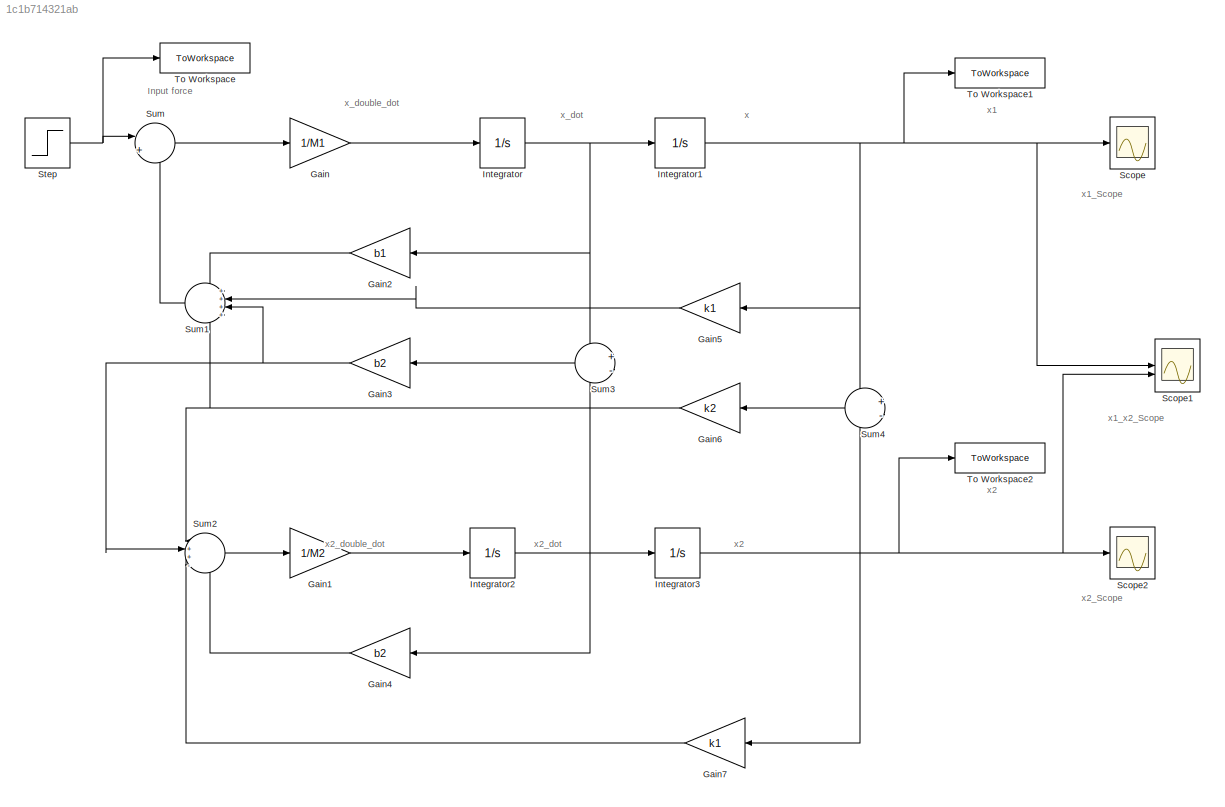
MODEL slx_1c1b714321ab
KIND model
CONFIG AbsTol = auto
CONFIG EnableMultiTasking = off
CONFIG FixedStep = auto
CONFIG MaxStep = auto
CONFIG MinStep = auto
CONFIG RelTol = 1e-3
CONFIG SampleTimeConstraint = Unconstrained
CONFIG SolverName = VariableStepAuto
CONFIG StartTime = 0.0
CONFIG StopTime = 10.0
BLOCK [Gain] Gain
  Gain = 1/M1
BLOCK [Gain] Gain1
  Gain = 1/M2
BLOCK [Gain] Gain2
  Gain = b1
  NameLocation = top
BLOCK [Gain] Gain3
  Gain = b2
  NameLocation = top
BLOCK [Gain] Gain4
  Gain = b2
  NameLocation = top
BLOCK [Gain] Gain5
  Gain = k1
  NameLocation = top
BLOCK [Gain] Gain6
  Gain = k2
  NameLocation = top
BLOCK [Gain] Gain7
  Gain = k1
  NameLocation = top
BLOCK [Integrator] Integrator
BLOCK [Integrator] Integrator1
BLOCK [Integrator] Integrator2
BLOCK [Integrator] Integrator3
BLOCK [Scope] Scope
  Floating = off
  NumInputPorts = 1
  ScopeSpecificationString = Simulink.scopes.TimeScopeBlockCfg('CurrentConfiguration', extmgr.ConfigurationSet(extmgr.Configuration('Core','General UI',true),extmgr.Configuration('Core','Source UI',true),extmgr.Configuration('Sources','WiredSimulink',true),extmgr.Configuration('Visuals','Time Domain',true,'SerializedDisplays',{struct('MinYLimReal','-25.74656','MaxYLimReal','3.40487','YLabelReal','','MinYLimMag','0.00000','Max...<+1424ch>
BLOCK [Scope] Scope1
  Floating = off
  NumInputPorts = 2
  ScopeSpecificationString = Simulink.scopes.TimeScopeBlockCfg('CurrentConfiguration', extmgr.ConfigurationSet(extmgr.Configuration('Core','General UI',true),extmgr.Configuration('Core','Source UI',true),extmgr.Configuration('Sources','WiredSimulink',true,'DataLoggingVariableName','ScopeData1'),extmgr.Configuration('Visuals','Time Domain',true,'SerializedDisplays',{struct('MinYLimReal','-10','MaxYLimReal','10','YLabelReal',''...<+849ch>
BLOCK [Scope] Scope2
  Floating = off
  NumInputPorts = 1
  ScopeSpecificationString = Simulink.scopes.TimeScopeBlockCfg('CurrentConfiguration', extmgr.ConfigurationSet(extmgr.Configuration('Core','General UI',true),extmgr.Configuration('Core','Source UI',true),extmgr.Configuration('Sources','WiredSimulink',true,'DataLoggingVariableName','ScopeData2'),extmgr.Configuration('Visuals','Time Domain',true,'SerializedDisplays',{struct('MinYLimReal','-10','MaxYLimReal','10','YLabelReal',''...<+849ch>
BLOCK [Step] Step
  After = F
  SampleTime = 0
BLOCK [Sum] Sum
  Inputs = |+-
BLOCK [Sum] Sum1
  Inputs = ++++
  NameLocation = top
BLOCK [Sum] Sum2
  Inputs = |++--
BLOCK [Sum] Sum3
  Inputs = +-
BLOCK [Sum] Sum4
  Inputs = +-
BLOCK [ToWorkspace] To Workspace
  FixptAsFi = on
  MaxDataPoints = inf
  SampleTime = -1
  SaveFormat = Timeseries
  VariableName = F
BLOCK [ToWorkspace] To Workspace1
  FixptAsFi = on
  MaxDataPoints = inf
  SampleTime = -1
  SaveFormat = Timeseries
  VariableName = x1
BLOCK [ToWorkspace] To Workspace2
  FixptAsFi = on
  MaxDataPoints = inf
  SampleTime = -1
  SaveFormat = Timeseries
  VariableName = x2
ANNOTATION (root): x1
ANNOTATION (root): x1_Scope
ANNOTATION (root): x1_x2_Scope
ANNOTATION (root): x2
ANNOTATION (root): x2_Scope
ANNOTATION (root): x2_dot
ANNOTATION (root): x2_double_dot
ANNOTATION (root): x
ANNOTATION (root): x_dot
ANNOTATION (root): x_double_dot
ANNOTATION (root): Input force
LINE Gain1:1 -> Integrator2:1
LINE Gain2:1 -> Sum1:1
NET Gain3:1 -> Sum1:3, Sum2:2
LINE Gain4:1 -> Sum2:4
LINE Gain5:1 -> Sum1:2
NET Gain6:1 -> Sum1:4, Sum2:1
LINE Gain7:1 -> Sum2:3
LINE Gain:1 -> Integrator:1
NET Integrator1:1 -> Gain5:1, Scope1:1, Scope:1, Sum4:1, To Workspace1:1
NET Integrator2:1 -> Gain4:1, Integrator3:1, Sum3:2
NET Integrator3:1 -> Gain7:1, Scope1:2, Scope2:1, Sum4:2, To Workspace2:1
NET Integrator:1 -> Gain2:1, Integrator1:1, Sum3:1
NET Step:1 -> Sum:1, To Workspace:1
LINE Sum1:1 -> Sum:2
LINE Sum2:1 -> Gain1:1
LINE Sum3:1 -> Gain3:1
LINE Sum4:1 -> Gain6:1
LINE Sum:1 -> Gain:1
note: NET lines group one-source signal fan-out (src -> all destinations, sorted); 1:1 wires keep LINE
